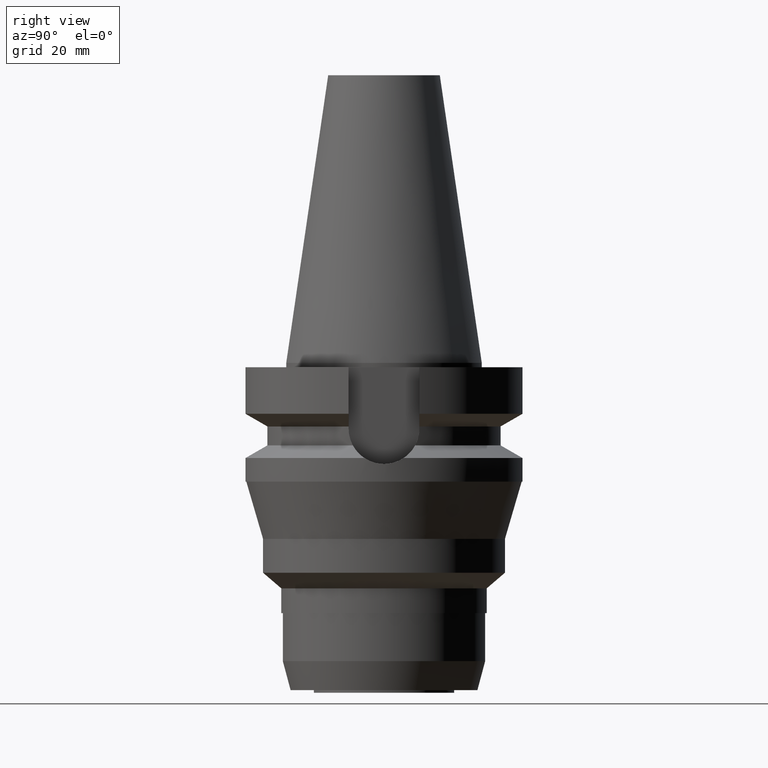
[diagram: clean part render]
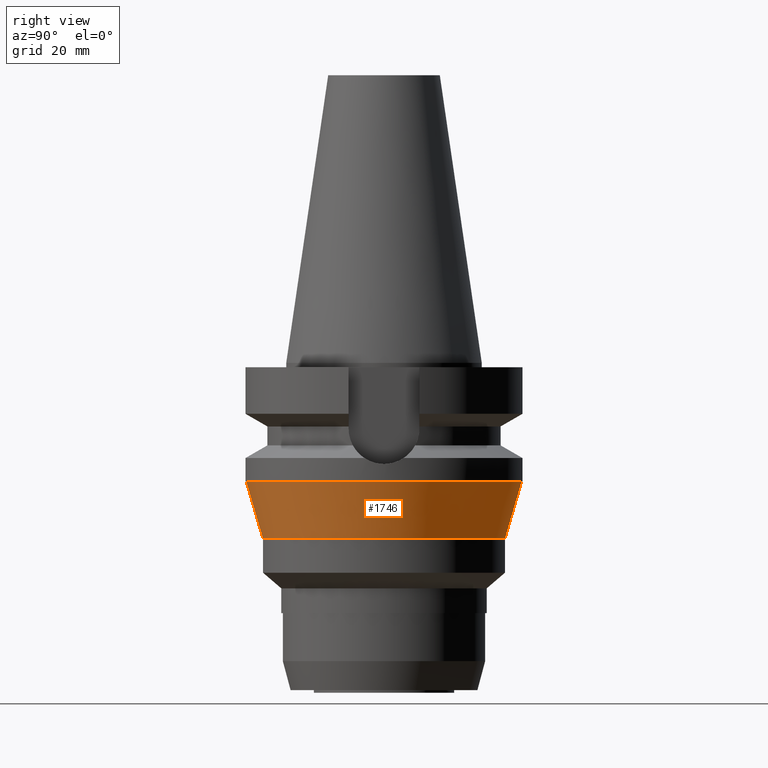
[diagram: same view with one face highlighted and labeled with its STEP entity id]
A machine part, right view. The second image highlights one B-rep face of the part: STEP entity #1746.
In plain terms, the highlighted conical surface has half-angle 16.294 deg.
Its self-contained STEP definition (entity closure, byte-faithful):
#490=DIRECTION('',(0.E0,2.805661968069E-1,-9.598346780614E-1));
#491=VECTOR('',#490,1.354399908353E1);
#492=CARTESIAN_POINT('',(0.E0,-3.129998831242E1,-2.7E1));
#493=LINE('',#492,#491);
#505=DIRECTION('',(0.E0,-2.805661968069E-1,-9.598346780614E-1));
#506=VECTOR('',#505,1.354399908353E1);
#507=CARTESIAN_POINT('',(0.E0,3.129998831242E1,-2.7E1));
#508=LINE('',#507,#506);
#512=CARTESIAN_POINT('',(0.E0,0.E0,-4.E1));
#513=DIRECTION('',(0.E0,0.E0,-1.E0));
#514=DIRECTION('',(0.E0,1.E0,0.E0));
#515=AXIS2_PLACEMENT_3D('',#512,#513,#514);
#544=CARTESIAN_POINT('',(0.E0,0.E0,-2.7E1));
#545=DIRECTION('',(0.E0,0.E0,-1.E0));
#546=DIRECTION('',(0.E0,1.E0,0.E0));
#547=AXIS2_PLACEMENT_3D('',#544,#545,#546);
#1176=CARTESIAN_POINT('',(0.E0,2.75E1,-4.E1));
#1177=VERTEX_POINT('',#1176);
#1178=CARTESIAN_POINT('',(0.E0,-2.75E1,-4.E1));
#1179=VERTEX_POINT('',#1178);
#1180=CARTESIAN_POINT('',(0.E0,3.129998831242E1,-2.7E1));
#1181=VERTEX_POINT('',#1180);
#1182=CARTESIAN_POINT('',(0.E0,-3.129998831242E1,-2.7E1));
#1183=VERTEX_POINT('',#1182);
#1734=CARTESIAN_POINT('',(0.E0,0.E0,-3.35E1));
#1735=DIRECTION('',(0.E0,0.E0,1.E0));
#1736=DIRECTION('',(0.E0,1.E0,0.E0));
#1737=AXIS2_PLACEMENT_3D('',#1734,#1735,#1736);
#1738=CONICAL_SURFACE('',#1737,2.939999415621E1,1.6294E1);
#1739=ORIENTED_EDGE('',*,*,#1724,.T.);
#1740=ORIENTED_EDGE('',*,*,#1701,.T.);
#1741=ORIENTED_EDGE('',*,*,#1728,.F.);
#1743=ORIENTED_EDGE('',*,*,#1742,.F.);
#1744=EDGE_LOOP('',(#1739,#1740,#1741,#1743));
#1745=FACE_OUTER_BOUND('',#1744,.F.);
#516=CIRCLE('',#515,2.75E1);
#548=CIRCLE('',#547,3.129998831242E1);
#1701=EDGE_CURVE('',#1177,#1179,#516,.T.);
#1724=EDGE_CURVE('',#1181,#1177,#508,.T.);
#1728=EDGE_CURVE('',#1183,#1179,#493,.T.);
#1742=EDGE_CURVE('',#1181,#1183,#548,.T.);
#1746=ADVANCED_FACE('',(#1745),#1738,.T.);